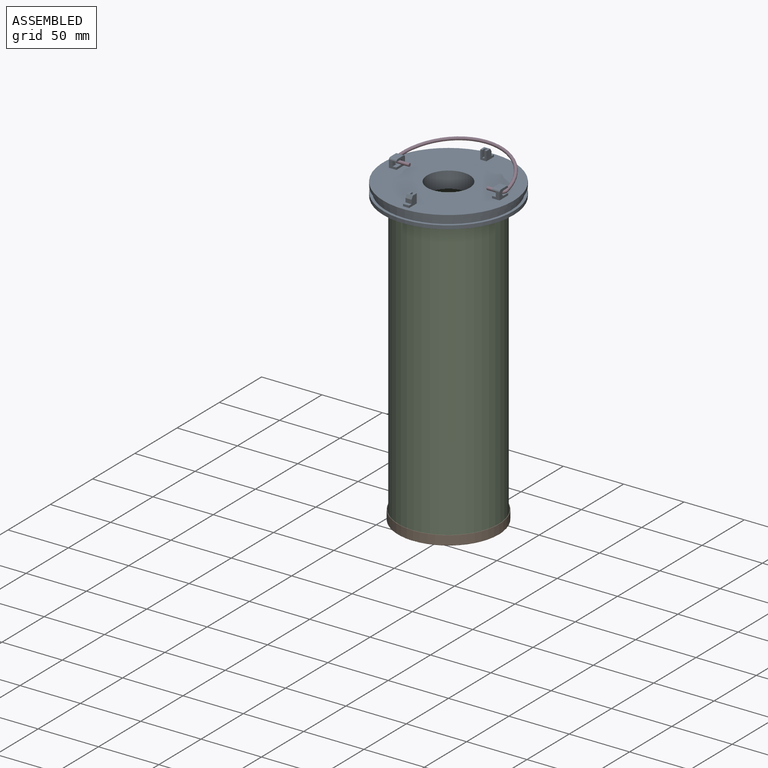
[diagram: assembled view]
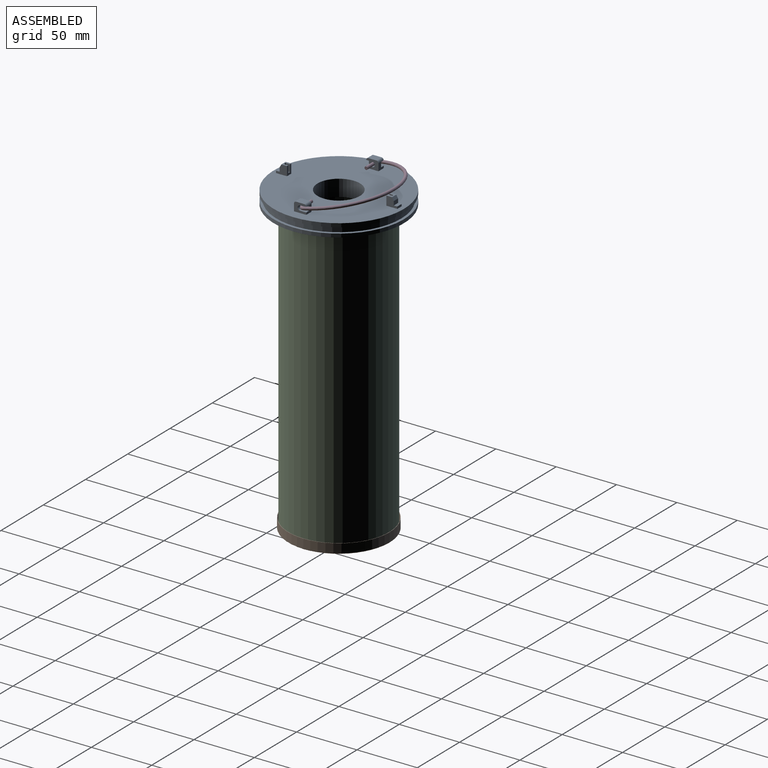
[diagram: assembled view, second angle]
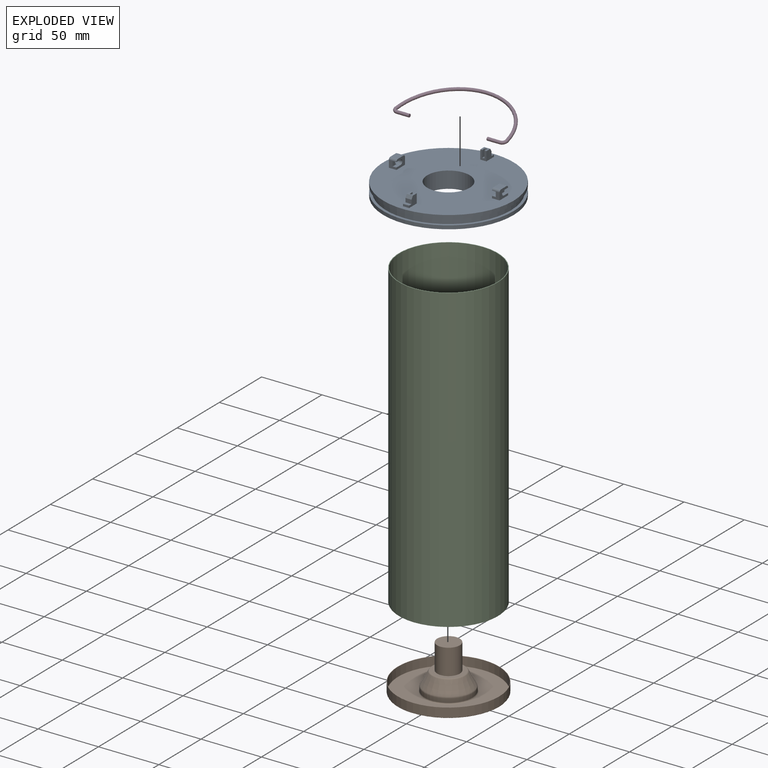
[diagram: exploded view]
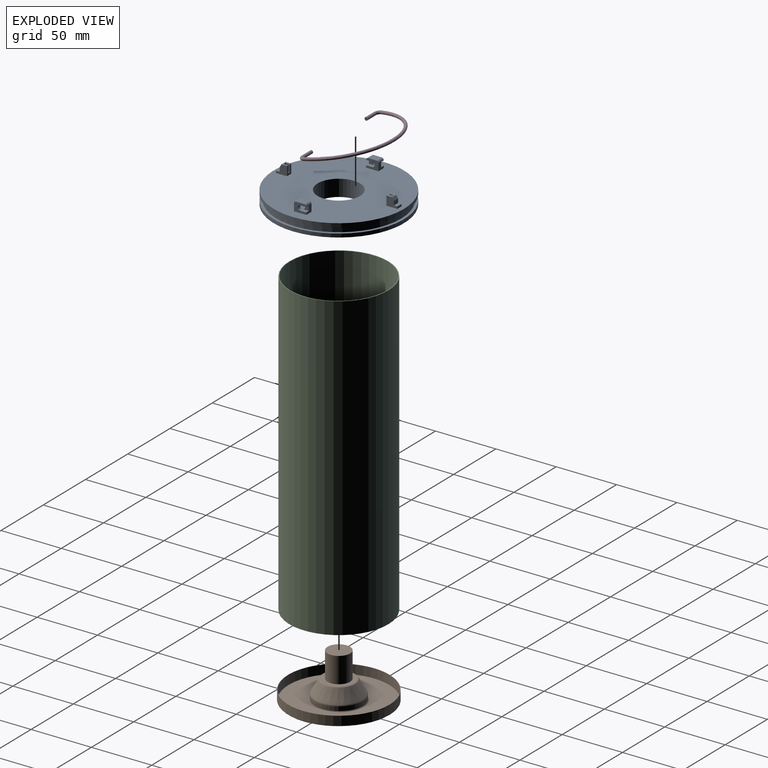
[diagram: exploded view, second angle]
ASSEMBLY  parts=4 mates=3
PART A: 139 faces, bbox 107.9x107.9x21.3 mm
  f0: plane 5.08x4.63mm, normal (0,0,1), area 17.3mm2, adj f1,f3,f131,f134,f135,f136,f137
  f1: plane 7.62x5.08mm, normal (0,1,0), area 28.3mm2, adj f0,f3,f4,f131,f136,f137,f138
  f2: plane 5.08x1.78mm, normal (0,-1,0), area 9mm2, adj f3,f4,f131,f132
  f3: plane 9.02x7.62mm, normal (-1,0,0), area 49.8mm2, adj f0,f1,f2,f4,f132,f133,f134
  f4: plane 107.87x107.87mm, normal (0,0,1), area 7947.6mm2, adj f1,f2,f3,f5,f6,f7,f10,f11
  f5: plane 5.08x1.78mm, normal (0,1,0), area 9mm2, adj f4,f120,f122,f125
  f6: plane 6.22x5.84mm, normal (0,-1,0), area 23.9mm2, adj f4,f7,f109,f114,f115,f117,f118
  f7: plane 10.16x7.62mm, normal (1,0,0), area 49.5mm2, adj f4,f6,f108,f110,f114,f115,f116,f118
  f8: plane 5.08x4mm, normal (-1,0,0), area 14mm2, adj f108,f111,f112,f116
  f9: plane 5.08x4mm, normal (1,0,0), area 14mm2, adj f10,f99,f101,f104
  f10: plane 6.22x5.84mm, normal (0,1,0), area 23.9mm2, adj f4,f9,f11,f96,f99,f101,f107
  f11: plane 10.16x7.62mm, normal (1,0,0), area 49.5mm2, adj f4,f10,f97,f98,f99,f100,f101,f106
  f12: cylinder r=42.95mm len=20.54mm, axis (0,0,1), area 229.2mm2, adj f43,f50,f64,f95
  f13: plane 21.37x21.37mm, normal (0,0,-1), area 170.8mm2, adj f14,f16,f92,f94
  f14: cylinder r=50.25mm len=17.71mm, axis (0,0,1), area 194.9mm2, adj f13,f54,f92,f94
  f15: plane 24.2x12.81mm, normal (0,0,-1), area 170.8mm2, adj f17,f51,f62,f91
  f16: cylinder r=42.95mm len=15.04mm, axis (0,0,1), area 229.2mm2, adj f13,f50,f92,f94
  f17: cylinder r=50.25mm len=24.19mm, axis (0,0,1), area 194.9mm2, adj f15,f54,f62,f91
  f18: cylinder r=42.95mm len=20.54mm, axis (0,0,1), area 229.2mm2, adj f50,f52,f61,f89
  f19: cylinder r=50.25mm len=17.71mm, axis (0,0,1), area 194.9mm2, adj f20,f54,f86,f88
  f20: plane 21.36x21.36mm, normal (0,0,-1), area 170.8mm2, adj f19,f21,f86,f88
  f21: cylinder r=42.95mm len=15.04mm, axis (0,0,1), area 229.2mm2, adj f20,f50,f86,f88
  f22: cylinder r=50.25mm len=24.19mm, axis (0,0,1), area 194.9mm2, adj f23,f54,f83,f85
  f23: plane 24.2x12.81mm, normal (0,0,-1), area 170.9mm2, adj f22,f24,f83,f85
  f24: cylinder r=42.95mm len=20.54mm, axis (0,0,1), area 229.2mm2, adj f23,f50,f83,f85
  f25: cylinder r=50.25mm len=24.19mm, axis (0,0,1), area 194.9mm2, adj f26,f54,f80,f82
  f26: plane 24.2x12.81mm, normal (0,0,-1), area 170.9mm2, adj f25,f27,f80,f82
  f27: cylinder r=42.95mm len=20.54mm, axis (0,0,1), area 229.2mm2, adj f26,f50,f80,f82
  f28: cylinder r=50.25mm len=17.71mm, axis (0,0,1), area 194.9mm2, adj f29,f54,f77,f79
  f29: plane 21.37x21.37mm, normal (0,0,-1), area 170.9mm2, adj f28,f30,f77,f79
  f30: cylinder r=42.95mm len=15.04mm, axis (0,0,1), area 229.2mm2, adj f29,f50,f77,f79
  f31: cylinder r=50.25mm len=24.19mm, axis (0,0,1), area 194.9mm2, adj f32,f54,f74,f76
  f32: plane 24.2x12.81mm, normal (0,0,-1), area 170.8mm2, adj f31,f33,f74,f76
  f33: cylinder r=42.95mm len=20.54mm, axis (0,0,1), area 229.2mm2, adj f32,f50,f74,f76
  f34: cylinder r=50.25mm len=24.19mm, axis (0,0,1), area 194.9mm2, adj f35,f54,f71,f73
  f35: plane 24.2x12.81mm, normal (0,0,-1), area 170.8mm2, adj f34,f36,f71,f73
  f36: cylinder r=42.95mm len=20.54mm, axis (0,0,1), area 229.2mm2, adj f35,f50,f71,f73
  f37: cylinder r=50.25mm len=17.71mm, axis (0,0,1), area 194.9mm2, adj f38,f54,f68,f70
  f38: plane 21.37x21.37mm, normal (0,0,-1), area 170.9mm2, adj f37,f39,f68,f70
  f39: cylinder r=42.95mm len=15.04mm, axis (0,0,1), area 229.2mm2, adj f38,f50,f68,f70
  f40: cylinder r=50.25mm len=24.19mm, axis (0,0,1), area 194.9mm2, adj f41,f54,f65,f67
  f41: plane 24.2x12.81mm, normal (0,0,-1), area 170.8mm2, adj f40,f42,f65,f67
  f42: cylinder r=42.95mm len=20.54mm, axis (0,0,1), area 229.2mm2, adj f41,f50,f65,f67
  f43: plane 24.2x12.81mm, normal (0,0,-1), area 170.9mm2, adj f12,f53,f64,f95
  f44: cylinder r=50.25mm len=24.19mm, axis (0,0,1), area 194.9mm2, adj f52,f54,f61,f89
  f45: cylinder r=17.6mm len=35.2mm, axis (0,0,1), area 1511.5mm2, adj f4,f46
  f46: plane 37.2x37.2mm, normal (0,0,-1), area 113.7mm2, adj f45,f47
  f47: cylinder r=18.6mm len=37.2mm, axis (0,0,1), area 1246.7mm2, adj f46,f48
  f48: plane 83.9x83.9mm, normal (0,0,-1), area 4441.7mm2, adj f47,f49
  f49: cylinder r=41.95mm len=83.9mm, axis (0,0,1), area 2811.9mm2, adj f48,f50
  f50: plane 85.9x85.9mm, normal (0,0,-1), area 266.7mm2, adj f12,f16,f18,f21,f24,f27,f30,f33
  f51: cylinder r=42.95mm len=20.54mm, axis (0,0,1), area 229.2mm2, adj f15,f50,f62,f91
  f52: plane 24.2x12.81mm, normal (0,0,-1), area 170.8mm2, adj f18,f44,f61,f89
  f53: cylinder r=50.25mm len=24.19mm, axis (0,0,1), area 194.9mm2, adj f43,f54,f64,f95
  f54: plane 107.88x107.88mm, normal (0,0,-1), area 1206.1mm2, adj f14,f17,f19,f22,f25,f28,f31,f34
  f55: cylinder r=53.93mm len=107.87mm, axis (0,0,1), area 999.7mm2, adj f54,f56
  f56: plane 107.87x107.87mm, normal (0,0,1), area 725.5mm2, adj f55,f57
  f57: cylinder r=51.75mm len=103.5mm, axis (0,0,1), area 1544.5mm2, adj f56,f58
  f58: plane 107.87x107.87mm, normal (0,0,-1), area 725.5mm2, adj f57,f59
  f59: cylinder r=53.93mm len=107.87mm, axis (0,0,1), area 1016.7mm2, adj f4,f58
  f60: plane 7.3x2.97mm, normal (-0.38,0,-0.93), area 7.9mm2, adj f50,f54,f61,f62
  f61: plane 10.67x7.31mm, normal (0,-1,0), area 67.1mm2, adj f18,f44,f50,f52,f54,f60
  f62: plane 10.67x7.31mm, normal (0,1,0), area 67.1mm2, adj f15,f17,f50,f51,f54,f60
  f63: plane 7.3x2.97mm, normal (0,0.38,-0.93), area 7.9mm2, adj f50,f54,f64,f65
  f64: plane 10.67x7.3mm, normal (-1,0,0), area 67.1mm2, adj f12,f43,f50,f53,f63
  f65: plane 10.67x7.3mm, normal (1,0,0), area 67.1mm2, adj f40,f41,f42,f50,f63
  f66: plane 6.83x4.52mm, normal (0.19,0.33,-0.93), area 7.8mm2, adj f50,f54,f67,f68
  f67: plane 10.68x6.34mm, normal (-0.87,0.5,0), area 67.1mm2, adj f40,f41,f42,f50,f66
  f68: plane 10.68x6.34mm, normal (0.87,-0.5,0), area 67.1mm2, adj f37,f38,f39,f50,f66
  f69: plane 6.83x4.52mm, normal (0.33,0.19,-0.93), area 7.9mm2, adj f50,f54,f70,f71
  f70: plane 10.68x6.34mm, normal (-0.5,0.87,0), area 67.1mm2, adj f37,f38,f39,f50,f69
  f71: plane 10.68x6.34mm, normal (0.5,-0.87,0), area 67.1mm2, adj f34,f35,f36,f50,f69
  f72: plane 7.31x2.97mm, normal (0.38,0,-0.93), area 7.9mm2, adj f50,f54,f73,f74
  f73: plane 10.68x7.32mm, normal (0,1,0), area 67.1mm2, adj f34,f35,f36,f50,f72
  f74: plane 10.68x7.32mm, normal (0,-1,0), area 67.1mm2, adj f31,f32,f33,f50,f72
  f75: plane 6.83x4.52mm, normal (0.33,-0.19,-0.93), area 7.9mm2, adj f50,f54,f76,f77
  f76: plane 10.68x6.34mm, normal (0.5,0.87,0), area 67.1mm2, adj f31,f32,f33,f50,f75
  f77: plane 10.68x6.34mm, normal (-0.5,-0.87,0), area 67.1mm2, adj f28,f29,f30,f50,f75
  f78: plane 6.83x4.52mm, normal (0.19,-0.33,-0.93), area 7.9mm2, adj f50,f54,f79,f80
  f79: plane 10.68x6.34mm, normal (0.87,0.5,0), area 67.1mm2, adj f28,f29,f30,f50,f78
  f80: plane 10.68x6.34mm, normal (-0.87,-0.5,0), area 67.1mm2, adj f25,f26,f27,f50,f78
  f81: plane 7.31x2.97mm, normal (0,-0.38,-0.93), area 7.9mm2, adj f50,f54,f82,f83
  f82: plane 10.68x7.32mm, normal (1,0,0), area 67.1mm2, adj f25,f26,f27,f50,f81
  f83: plane 10.68x7.32mm, normal (-1,0,0), area 67.1mm2, adj f22,f23,f24,f50,f81
  f84: plane 6.83x4.52mm, normal (-0.19,-0.33,-0.93), area 7.9mm2, adj f50,f54,f85,f86
  f85: plane 10.68x6.34mm, normal (0.87,-0.5,0), area 67.1mm2, adj f22,f23,f24,f50,f84
  f86: plane 10.68x6.34mm, normal (-0.87,0.5,0), area 67.1mm2, adj f19,f20,f21,f50,f84
  f87: plane 6.83x4.52mm, normal (-0.33,-0.19,-0.93), area 7.9mm2, adj f50,f54,f88,f89
  f88: plane 10.68x6.34mm, normal (0.5,-0.87,0), area 67.1mm2, adj f19,f20,f21,f50,f87
  f89: plane 10.68x6.34mm, normal (-0.5,0.87,0), area 67.1mm2, adj f18,f44,f50,f52,f87
  f90: plane 6.83x4.52mm, normal (-0.33,0.19,-0.93), area 7.9mm2, adj f50,f54,f91,f92
  f91: plane 10.68x6.34mm, normal (-0.5,-0.87,0), area 67.1mm2, adj f15,f17,f50,f51,f90
  f92: plane 10.68x6.34mm, normal (0.5,0.87,0), area 67.1mm2, adj f13,f14,f16,f50,f90
  f93: plane 6.83x4.52mm, normal (-0.19,0.33,-0.93), area 7.9mm2, adj f50,f54,f94,f95
  f94: plane 10.68x6.34mm, normal (-0.87,-0.5,0), area 67.1mm2, adj f13,f14,f16,f50,f93
  f95: plane 10.68x6.34mm, normal (0.87,0.5,0), area 67.1mm2, adj f12,f43,f50,f53,f93
  f96: plane 10.16x7.62mm, normal (-1,0,0), area 49.5mm2, adj f4,f10,f97,f98,f103,f104,f105,f106
  f97: plane 6.22x5.84mm, normal (0,-1,0), area 23.9mm2, adj f4,f11,f96,f102,f103,f105,f106
  f98: plane 6.6x6.22mm, normal (0,0,1), area 41.1mm2, adj f11,f96,f106,f107
  f99: plane 5.08x3.11mm, normal (0,0,-1), area 15.8mm2, adj f9,f10,f11,f100
  f100: cylinder r=2mm len=4mm, axis (1,0,0), area 19.6mm2, adj f11,f99,f101,f102
  f101: plane 5.08x3.11mm, normal (0,0,1), area 15.8mm2, adj f9,f10,f11,f100
  f102: plane 5.08x4mm, normal (-1,0,0), area 14mm2, adj f97,f100,f103,f105
  f103: plane 5.08x3.11mm, normal (0,0,-1), area 15.8mm2, adj f96,f97,f102,f104
  f104: cylinder r=2mm len=4mm, axis (-1,0,0), area 19.6mm2, adj f9,f96,f103,f105
  f105: plane 5.08x3.11mm, normal (0,0,1), area 15.8mm2, adj f96,f97,f102,f104
  f106: cylinder r=1.78mm len=6.22mm, axis (-1,0,0), area 17.4mm2, adj f11,f96,f97,f98
  f107: cylinder r=1.78mm len=6.22mm, axis (1,0,0), area 17.4mm2, adj f10,f11,f96,f98
  f108: plane 6.22x5.84mm, normal (0,1,0), area 23.9mm2, adj f4,f7,f8,f109,f111,f112,f119
  f109: plane 10.16x7.62mm, normal (-1,0,0), area 49.5mm2, adj f4,f6,f108,f110,f111,f112,f113,f118
  f110: plane 6.6x6.22mm, normal (0,0,1), area 41.1mm2, adj f7,f109,f118,f119
  f111: plane 5.08x3.11mm, normal (0,0,-1), area 15.8mm2, adj f8,f108,f109,f113
  f112: plane 5.08x3.11mm, normal (0,0,1), area 15.8mm2, adj f8,f108,f109,f113
  f113: cylinder r=2mm len=4mm, axis (-1,0,0), area 19.6mm2, adj f109,f111,f112,f117
  f114: plane 5.08x3.11mm, normal (0,0,-1), area 15.8mm2, adj f6,f7,f116,f117
  f115: plane 5.08x3.11mm, normal (0,0,1), area 15.8mm2, adj f6,f7,f116,f117
  f116: cylinder r=2mm len=4mm, axis (1,0,0), area 19.6mm2, adj f7,f8,f114,f115
  f117: plane 5.08x4mm, normal (1,0,0), area 14mm2, adj f6,f113,f114,f115
  f118: cylinder r=1.78mm len=6.22mm, axis (-1,0,0), area 17.4mm2, adj f6,f7,f109,f110
  f119: cylinder r=1.78mm len=6.22mm, axis (1,0,0), area 17.4mm2, adj f7,f108,f109,f110
  f120: plane 9.02x7.62mm, normal (-1,0,0), area 49.8mm2, adj f4,f5,f121,f123,f124,f125,f126
  f121: plane 7.62x5.08mm, normal (0,-1,0), area 28.3mm2, adj f4,f120,f122,f123,f128,f129,f130
  f122: plane 9.02x7.62mm, normal (1,0,0), area 49.8mm2, adj f4,f5,f121,f123,f124,f125,f126
  f123: plane 5.08x4.63mm, normal (0,0,1), area 17.3mm2, adj f120,f121,f122,f126,f127,f128,f129
  f124: plane 5.08x3.3mm, normal (0,1,0), area 16.8mm2, adj f120,f122,f125,f126
  f125: plane 5.08x2.92mm, normal (0,0,1), area 14.8mm2, adj f5,f120,f122,f124
  f126: plane 5.08x2.54mm, normal (0,0.87,0.5), area 14.9mm2, adj f120,f122,f123,f124
  f127: cylinder r=0.89mm len=5.84mm, axis (0,0,1), area 16.3mm2, adj f123,f128,f129,f130
  f128: plane 5.84x2.79mm, normal (1,0,0), area 16.3mm2, adj f121,f123,f127,f130
  f129: plane 5.84x2.79mm, normal (-1,0,0), area 16.3mm2, adj f121,f123,f127,f130
  f130: plane 3.68x1.78mm, normal (0,0,1), area 6.2mm2, adj f121,f127,f128,f129
  f131: plane 9.02x7.62mm, normal (1,0,0), area 49.8mm2, adj f0,f1,f2,f4,f132,f133,f134
  f132: plane 5.08x2.92mm, normal (0,0,1), area 14.8mm2, adj f2,f3,f131,f133
  f133: plane 5.08x3.3mm, normal (0,-1,0), area 16.8mm2, adj f3,f131,f132,f134
  f134: plane 5.08x2.54mm, normal (0,-0.87,0.5), area 14.9mm2, adj f0,f3,f131,f133
  f135: cylinder r=0.89mm len=5.84mm, axis (0,0,1), area 16.3mm2, adj f0,f136,f137,f138
  f136: plane 5.84x2.79mm, normal (-1,0,0), area 16.3mm2, adj f0,f1,f135,f138
  f137: plane 5.84x2.79mm, normal (1,0,0), area 16.3mm2, adj f0,f1,f135,f138
  f138: plane 3.68x1.78mm, normal (0,0,1), area 6.2mm2, adj f1,f135,f136,f137
PART B: 23 faces, bbox 90.9x90.9x37.6 mm
  f0: cylinder r=19.5mm len=39mm, axis (0,0,1), area 392.3mm2, adj f1,f22
  f1: torus R=20.8mm, axis (0,0,1), area 255.3mm2, adj f0,f2
  f2: plane 82.88x82.88mm, normal (0,0,-1), area 4036.7mm2, adj f1,f3
  f3: torus R=41.44mm, axis (0,0,1), area 230.5mm2, adj f2,f4
  f4: cylinder r=42mm len=84mm, axis (0,0,1), area 1963.7mm2, adj f3,f5
  f5: plane 84x84mm, normal (0,0,1), area 80.1mm2, adj f4,f6
  f6: cylinder r=41.7mm len=83.39mm, axis (0,0,1), area 1950.5mm2, adj f5,f7
  f7: torus R=41.45mm, axis (0,0,1), area 102.7mm2, adj f6,f8
  f8: plane 82.89x82.89mm, normal (0,0,1), area 4036.5mm2, adj f7,f9
  f9: torus R=20.8mm, axis (0,0,1), area 199.1mm2, adj f8,f10
  f10: cylinder r=19.8mm len=39.61mm, axis (0,0,1), area 397.1mm2, adj f9,f11
  f11: torus R=17.49mm, axis (0,0,1), area 146.3mm2, adj f10,f12
  f12: cone r=13.84mm half-angle=29.3deg, axis (0,0,-1), area 1214.6mm2, adj f11,f13
  f13: torus R=12.71mm, axis (0,0,1), area 114.9mm2, adj f12,f14
  f14: plane 25.41x25.41mm, normal (0,0,1), area 229.6mm2, adj f13,f15
  f15: cylinder r=9.4mm len=21.2mm, axis (0,0,1), area 1252.1mm2, adj f14,f16
  f16: plane 18.8x18.8mm, normal (0,0,1), area 277.6mm2, adj f15
  f17: plane 23x23mm, normal (0,0,-1), area 415.5mm2, adj f18
  f18: cylinder r=11.5mm len=23mm, axis (0,0,1), area 198.4mm2, adj f17,f19
  f19: plane 25.4x25.4mm, normal (0,0,-1), area 91.2mm2, adj f18,f20
  f20: torus R=12.7mm, axis (0,0,1), area 87.7mm2, adj f19,f21
  f21: cone r=19.24mm half-angle=29.3deg, axis (0,0,-1), area 1195mm2, adj f20,f22
  f22: torus R=17.5mm, axis (0,0,1), area 124.8mm2, adj f0,f21
PART C: 4 faces, bbox 82x250x82 mm
  f0: cylinder r=40.44mm len=250mm, axis (0,1,0), area 63518mm2, adj f2,f3
  f1: cylinder r=41mm len=250mm, axis (0,1,0), area 64395.7mm2, adj f2,f3
  f2: plane 81.99x81.99mm, normal (0,-1,0), area 143mm2, adj f0,f1
  f3: plane 81.99x81.99mm, normal (0,1,0), area 143mm2, adj f0,f1
PART D: 7 faces, bbox 102x2.6x52.8 mm
  f0: plane 2.59x2.59mm, normal (-1,0,0), area 5.3mm2, adj f2
  f1: plane 2.59x2.59mm, normal (1,0,0), area 5.3mm2, adj f6
  f2: cylinder r=1.3mm len=10.42mm, axis (1,0,0), area 84.8mm2, adj f0,f3
  f3: torus R=3.17mm, axis (0,-1,0), area 42.5mm2, adj f2,f4
  f4: torus R=45.97mm, axis (0,-1,0), area 1120mm2, adj f3,f5
  f5: torus R=3.17mm, axis (0,-1,0), area 42.5mm2, adj f4,f6
  f6: cylinder r=1.3mm len=10.42mm, axis (1,0,0), area 84.8mm2, adj f1,f5
PLACE A t=(0,0,6.83)mm
PLACE B t=(0,0,-208.87)mm
PLACE C rot(axis=(1,0,0),90deg) t=(0,0,3.83)mm
PLACE D rot(axis=(-1,0,0),79.3deg) t=(0.04,0,10.61)mm
MATE cylindrical D.f2 <-> A.f104  axis (1,0,0) through (-32.21,0,10.61)mm
MATE fastened C.f0 <-> A.f12  axis (0,0,1) through (0,0,3.83)mm
MATE fastened B.f7 <-> C.f0  axis (0,0,1) through (0,0,-246.17)mm
